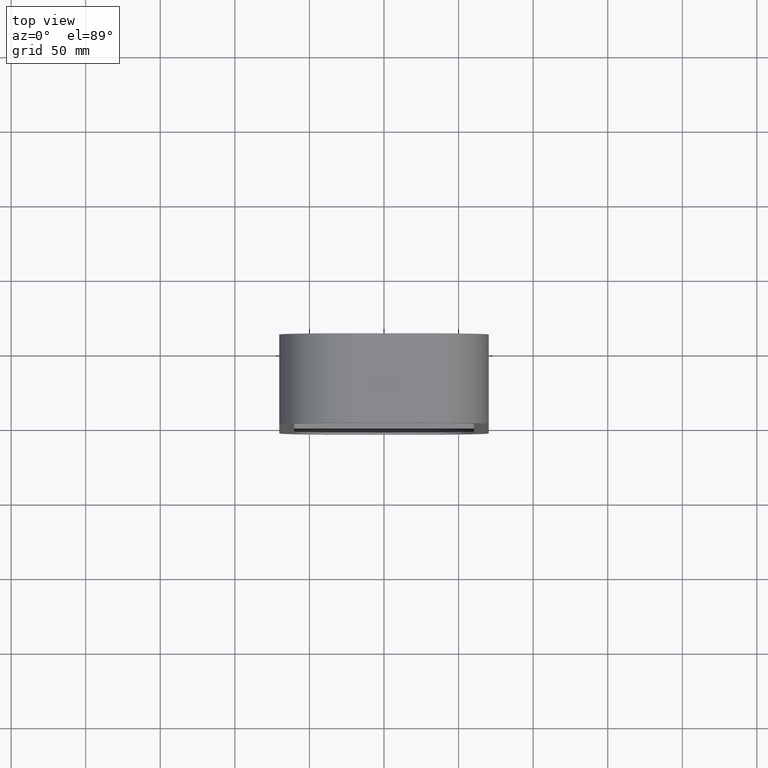
[diagram: clean part render]
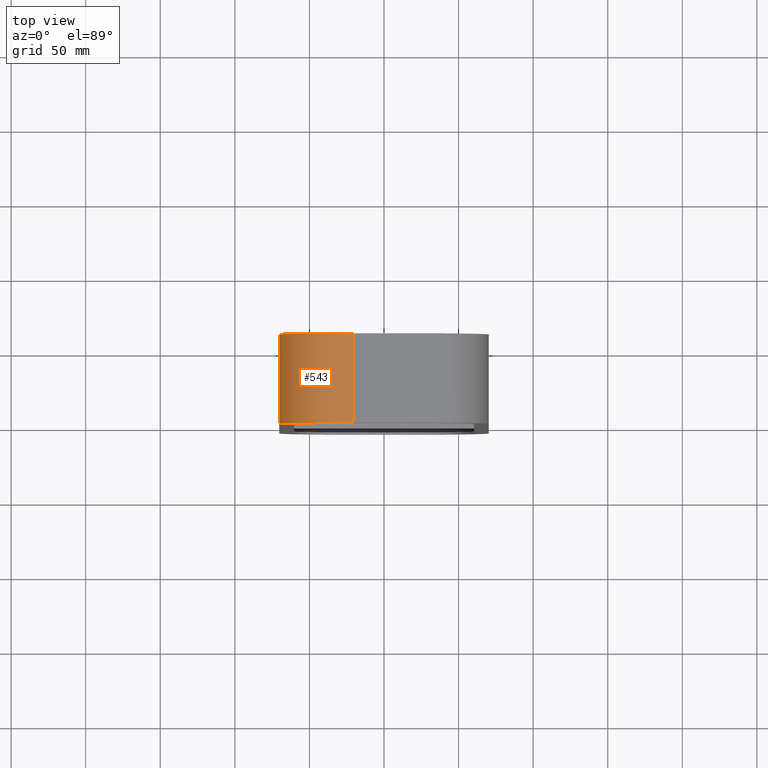
[diagram: same view with one face highlighted and labeled with its STEP entity id]
A machine part, top view. The second image highlights one B-rep face of the part: STEP entity #543.
In plain terms, the highlighted cylindrical surface (partial cylindrical patch) has radius 50 mm, axis along (0, 1, 0).
Its self-contained STEP definition (entity closure, byte-faithful):
#306=CARTESIAN_POINT('',(-20.250000000000014,-3.0,233.0));
#307=VERTEX_POINT('',#306);
#314=CARTESIAN_POINT('',(-70.250000000000014,-3.0,183.0));
#315=VERTEX_POINT('',#314);
#316=CARTESIAN_POINT('',(-20.250000000000014,-3.0,183.0));
#317=DIRECTION('',(0.0,1.0,0.0));
#318=DIRECTION('',(-0.707106781186547,0.0,0.707106781186547));
#319=AXIS2_PLACEMENT_3D('',#316,#317,#318);
#320=CIRCLE('',#319,49.999999999999986);
#321=EDGE_CURVE('',#315,#307,#320,.T.);
#502=CARTESIAN_POINT('',(-70.250000000000014,57.0,183.0));
#503=VERTEX_POINT('',#502);
#504=CARTESIAN_POINT('',(-70.250000000000014,57.0,183.0));
#505=DIRECTION('',(0.0,-1.0,0.0));
#506=VECTOR('',#505,60.0);
#507=LINE('',#504,#506);
#508=EDGE_CURVE('',#503,#315,#507,.T.);
#519=CARTESIAN_POINT('',(-20.250000000000014,0.0,183.0));
#520=DIRECTION('',(0.0,1.0,0.0));
#521=DIRECTION('',(-0.707106781186547,0.0,0.707106781186547));
#522=AXIS2_PLACEMENT_3D('',#519,#520,#521);
#523=CYLINDRICAL_SURFACE('',#522,49.999999999999993);
#524=CARTESIAN_POINT('',(-20.250000000000014,57.0,233.0));
#525=VERTEX_POINT('',#524);
#526=CARTESIAN_POINT('',(-20.250000000000014,57.0,183.0));
#527=DIRECTION('',(0.0,-1.0,0.0));
#528=DIRECTION('',(-0.707106781186547,0.0,0.707106781186547));
#529=AXIS2_PLACEMENT_3D('',#526,#527,#528);
#530=CIRCLE('',#529,49.999999999999986);
#531=EDGE_CURVE('',#525,#503,#530,.T.);
#532=ORIENTED_EDGE('',*,*,#531,.T.);
#533=ORIENTED_EDGE('',*,*,#508,.T.);
#534=ORIENTED_EDGE('',*,*,#321,.T.);
#535=CARTESIAN_POINT('',(-20.250000000000014,-3.0,233.0));
#536=DIRECTION('',(0.0,1.0,0.0));
#537=VECTOR('',#536,60.0);
#538=LINE('',#535,#537);
#539=EDGE_CURVE('',#307,#525,#538,.T.);
#540=ORIENTED_EDGE('',*,*,#539,.T.);
#541=EDGE_LOOP('',(#532,#533,#534,#540));
#542=FACE_OUTER_BOUND('',#541,.T.);
#543=ADVANCED_FACE('',(#542),#523,.T.);